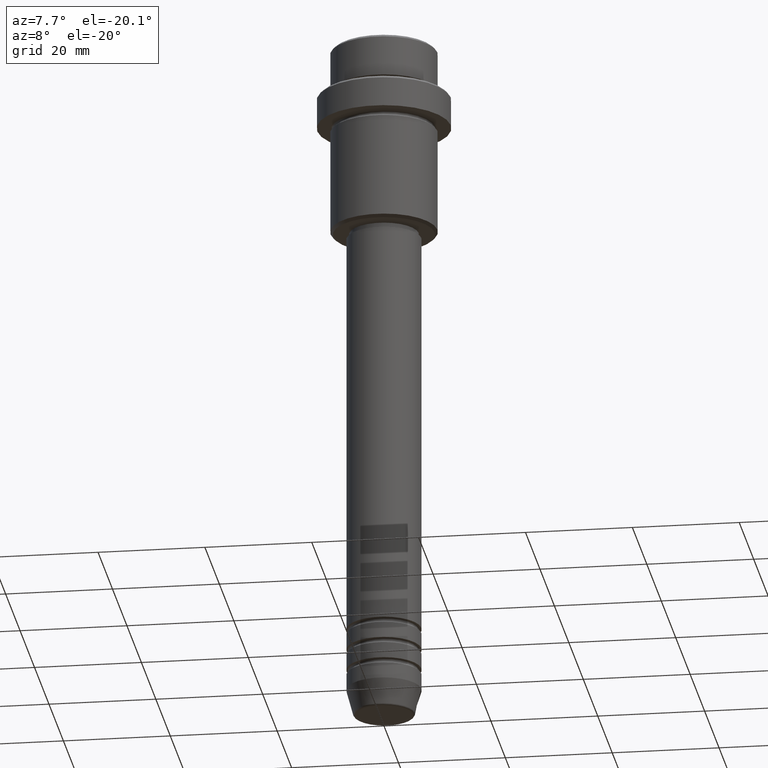
[diagram: clean part render]
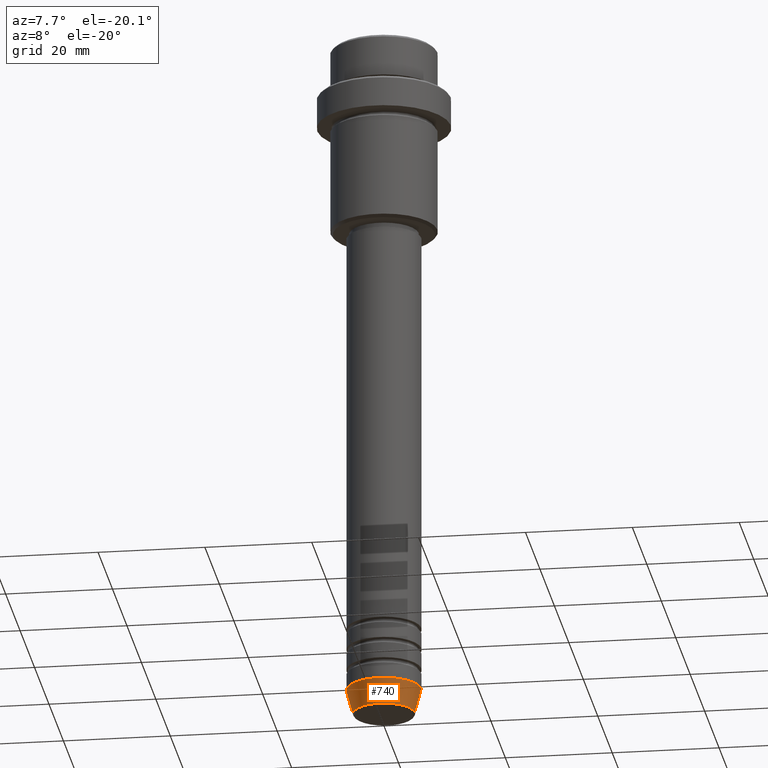
[diagram: same view with one face highlighted and labeled with its STEP entity id]
A machine part, auxiliary view. The second image highlights one B-rep face of the part: STEP entity #740.
In plain terms, the highlighted conical surface has half-angle 15 deg.
Its self-contained STEP definition (entity closure, byte-faithful):
#124 = CARTESIAN_POINT ( 'NONE',  ( 0.000000000000000000, 0.000000000000000000, -126.0000000000000000 ) ) ;
#180 = CARTESIAN_POINT ( 'NONE',  ( 5.759553456999435994, 0.000000000000000000, -130.6294095225512422 ) ) ;
#201 = DIRECTION ( 'NONE',  ( -0.2588190451025213501, 3.169619151431772337E-17, 0.9659258262890680902 ) ) ;
#214 = CARTESIAN_POINT ( 'NONE',  ( -7.000000000000000000, 8.572527594031473190E-16, -126.0000000000000000 ) ) ;
#310 = DIRECTION ( 'NONE',  ( -0.000000000000000000, -0.000000000000000000, 1.000000000000000000 ) ) ;
#327 = DIRECTION ( 'NONE',  ( 1.000000000000000000, 0.000000000000000000, 0.000000000000000000 ) ) ;
#429 = LINE ( 'NONE', #214, #903 ) ;
#453 = DIRECTION ( 'NONE',  ( 1.000000000000000000, 0.000000000000000000, 0.000000000000000000 ) ) ;
#468 = CIRCLE ( 'NONE', #1342, 5.759553456999435994 ) ;
#492 = CIRCLE ( 'NONE', #717, 7.000000000000000000 ) ;
#618 = VERTEX_POINT ( 'NONE', #180 ) ;
#717 = AXIS2_PLACEMENT_3D ( 'NONE', #124, #1194, #327 ) ;
#729 = EDGE_CURVE ( 'NONE', #618, #926, #957, .T. ) ;
#740 = ADVANCED_FACE ( 'NONE', ( #755 ), #854, .T. ) ;
#742 = ORIENTED_EDGE ( 'NONE', *, *, #729, .T. ) ;
#753 = DIRECTION ( 'NONE',  ( -0.000000000000000000, -0.000000000000000000, 1.000000000000000000 ) ) ;
#755 = FACE_OUTER_BOUND ( 'NONE', #758, .T. ) ;
#758 = EDGE_LOOP ( 'NONE', ( #1217, #1345, #742, #938 ) ) ;
#854 = CONICAL_SURFACE ( 'NONE', #1201, 7.000000000000000000, 0.2617993877991500740 ) ;
#900 = VECTOR ( 'NONE', #973, 1000.000000000000000 ) ;
#903 = VECTOR ( 'NONE', #201, 1000.000000000000000 ) ;
#905 = VERTEX_POINT ( 'NONE', #1325 ) ;
#926 = VERTEX_POINT ( 'NONE', #1246 ) ;
#938 = ORIENTED_EDGE ( 'NONE', *, *, #1279, .F. ) ;
#957 = LINE ( 'NONE', #1392, #900 ) ;
#973 = DIRECTION ( 'NONE',  ( 0.2588190451025213501, 0.000000000000000000, 0.9659258262890680902 ) ) ;
#1106 = CARTESIAN_POINT ( 'NONE',  ( -5.759553456999435994, 7.812973149831951773E-16, -130.6294095225512422 ) ) ;
#1194 = DIRECTION ( 'NONE',  ( -0.000000000000000000, -0.000000000000000000, 1.000000000000000000 ) ) ;
#1196 = DIRECTION ( 'NONE',  ( 1.000000000000000000, 0.000000000000000000, 0.000000000000000000 ) ) ;
#1201 = AXIS2_PLACEMENT_3D ( 'NONE', #1302, #310, #1196 ) ;
#1209 = EDGE_CURVE ( 'NONE', #1362, #905, #429, .T. ) ;
#1216 = CARTESIAN_POINT ( 'NONE',  ( 0.000000000000000000, 0.000000000000000000, -130.6294095225512422 ) ) ;
#1217 = ORIENTED_EDGE ( 'NONE', *, *, #1209, .F. ) ;
#1246 = CARTESIAN_POINT ( 'NONE',  ( 7.000000000000000000, 0.000000000000000000, -126.0000000000000000 ) ) ;
#1251 = EDGE_CURVE ( 'NONE', #1362, #618, #468, .T. ) ;
#1279 = EDGE_CURVE ( 'NONE', #905, #926, #492, .T. ) ;
#1302 = CARTESIAN_POINT ( 'NONE',  ( 0.000000000000000000, 0.000000000000000000, -126.0000000000000000 ) ) ;
#1325 = CARTESIAN_POINT ( 'NONE',  ( -7.000000000000000000, 8.572527594031473190E-16, -126.0000000000000000 ) ) ;
#1342 = AXIS2_PLACEMENT_3D ( 'NONE', #1216, #753, #453 ) ;
#1345 = ORIENTED_EDGE ( 'NONE', *, *, #1251, .T. ) ;
#1362 = VERTEX_POINT ( 'NONE', #1106 ) ;
#1392 = CARTESIAN_POINT ( 'NONE',  ( 7.000000000000000000, 0.000000000000000000, -126.0000000000000000 ) ) ;